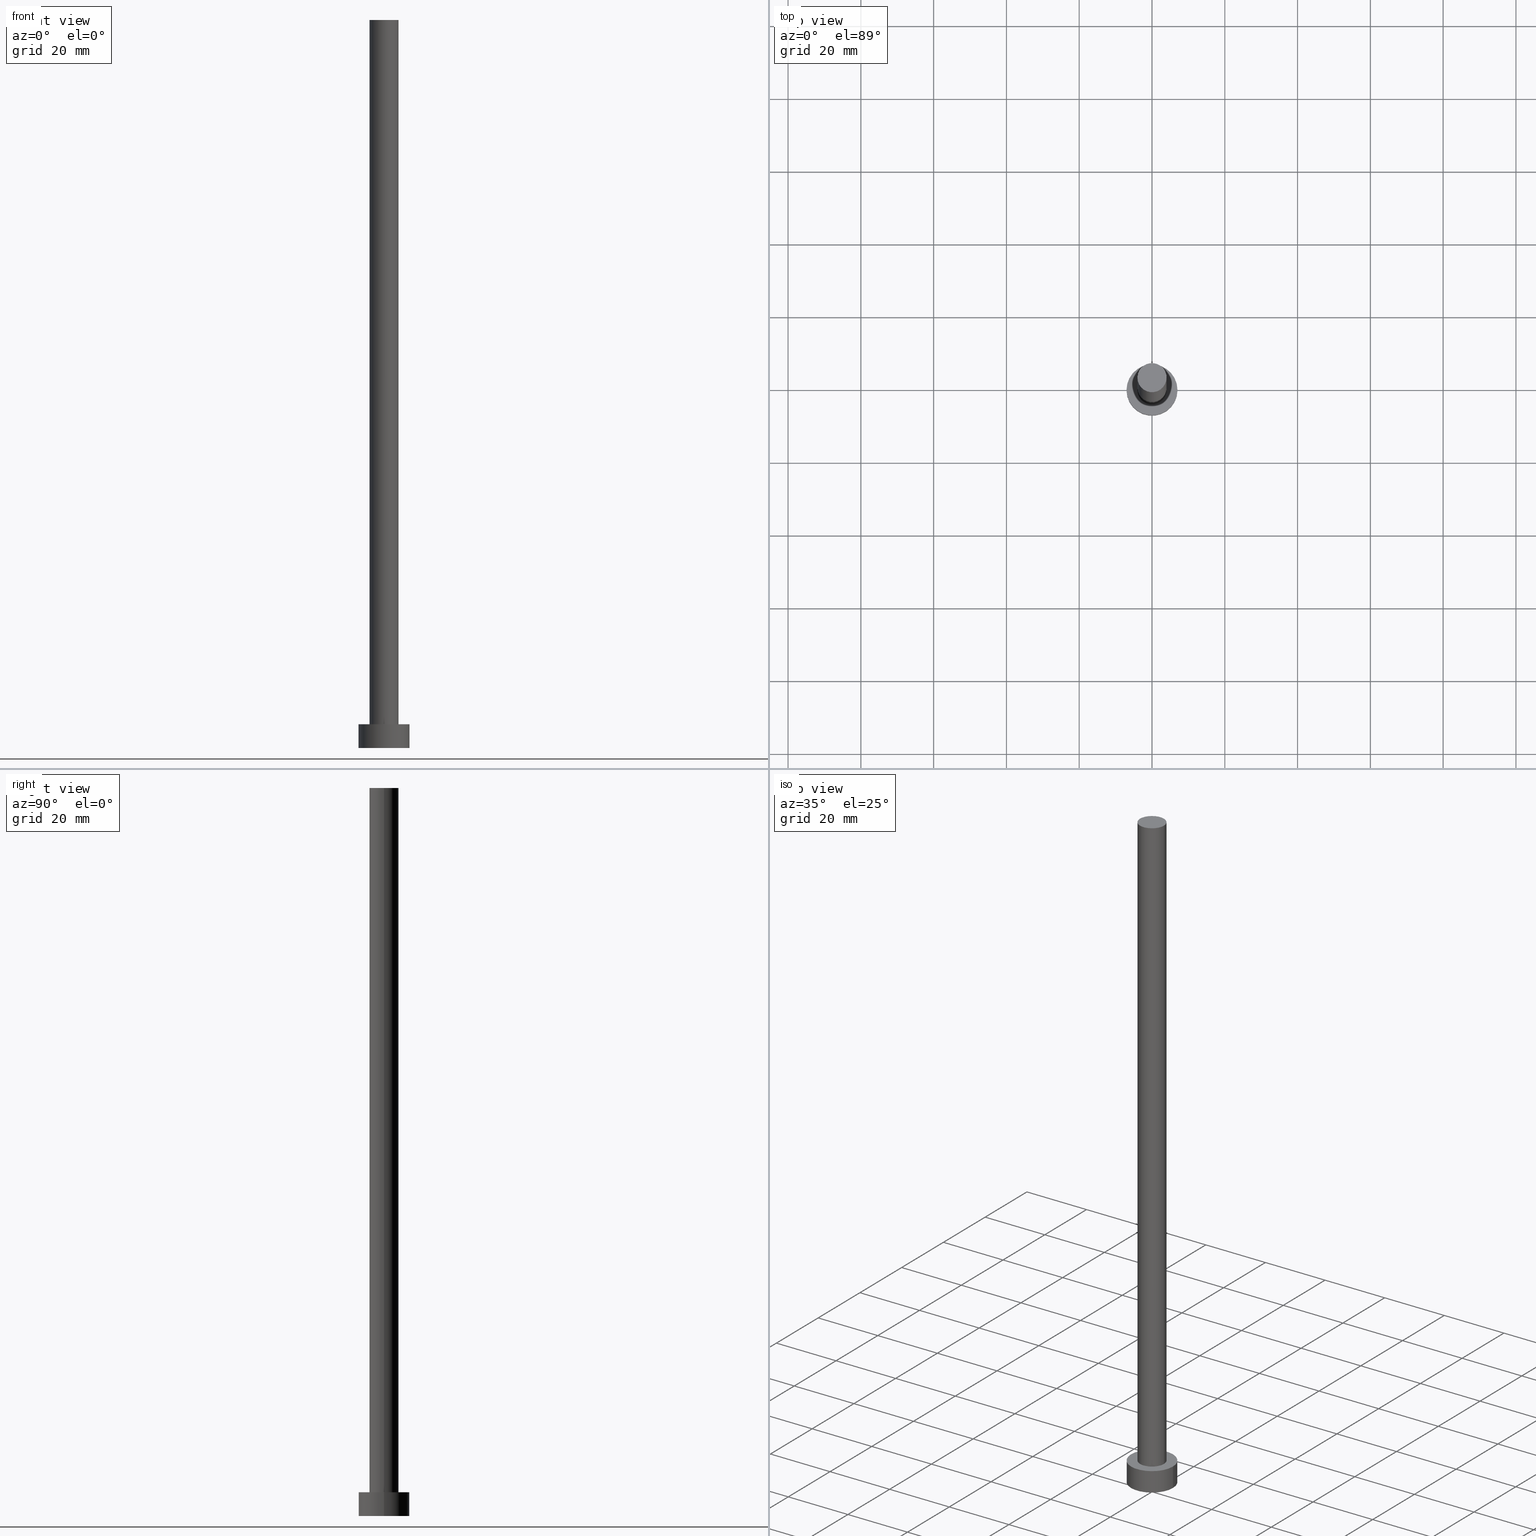
[diagram: canonical four-view strip — front | top / right | iso, engineering-drawing reading convention]
A machine part, canonical four-view strip (front | top / right | iso — engineering-drawing reading convention). The complete STEP part file that produces these views, byte-faithful:
ISO-10303-21;
HEADER;
FILE_DESCRIPTION (( 'STEP AP203' ),
    '1' );
FILE_NAME ('f5f1.STEP',
    '2023-02-13T14:19:38',
    ( '' ),
    ( '' ),
    'SwSTEP 2.0',
    'SolidWorks 2019',
    '' );
FILE_SCHEMA (( 'CONFIG_CONTROL_DESIGN' ));
ENDSEC;

DATA;
#1 = MANIFOLD_SOLID_BREP ( 'P�idat vysunut�m3', #27 ) ;
#2 = COORDINATED_UNIVERSAL_TIME_OFFSET ( 1, 0, .AHEAD. ) ;
#3 = CARTESIAN_POINT ( 'NONE',  ( 7.000000000000000000, 8.572527594031471218E-16, 6.500000000000000000 ) ) ;
#4 = COORDINATED_UNIVERSAL_TIME_OFFSET ( 1, 0, .AHEAD. ) ;
#5 = CIRCLE ( 'NONE', #173, 4.000000000000000000 ) ;
#6 = LOCAL_TIME ( 15, 19, 38.00000000000000000, #4 ) ;
#7 = ADVANCED_FACE ( 'NONE', ( #113, #234 ), #153, .T. ) ;
#8 = CARTESIAN_POINT ( 'NONE',  ( 0.000000000000000000, 0.000000000000000000, 6.500000000000000000 ) ) ;
#9 = CARTESIAN_POINT ( 'NONE',  ( 0.000000000000000000, 0.000000000000000000, 200.0000000000000000 ) ) ;
#10 = DIRECTION ( 'NONE',  ( 0.000000000000000000, 0.000000000000000000, 1.000000000000000000 ) ) ;
#11 = DIRECTION ( 'NONE',  ( 0.000000000000000000, 0.000000000000000000, 1.000000000000000000 ) ) ;
#12 = DIRECTION ( 'NONE',  ( -1.000000000000000000, 0.000000000000000000, 0.000000000000000000 ) ) ;
#13 = CIRCLE ( 'NONE', #19, 7.000000000000000000 ) ;
#14 = LOCAL_TIME ( 15, 19, 38.00000000000000000, #196 ) ;
#15 = AXIS2_PLACEMENT_3D ( 'NONE', #9, #236, #223 ) ;
#16 = PERSON_AND_ORGANIZATION ( #136, #28 ) ;
#17 = PERSON_AND_ORGANIZATION ( #136, #28 ) ;
#18 = PLANE ( 'NONE',  #57 ) ;
#19 = AXIS2_PLACEMENT_3D ( 'NONE', #88, #164, #59 ) ;
#20 = APPLICATION_PROTOCOL_DEFINITION ( 'international standard', 'config_control_design', 1994, #227 ) ;
#21 = EDGE_CURVE ( 'NONE', #229, #186, #77, .T. ) ;
#22 = CARTESIAN_POINT ( 'NONE',  ( 0.000000000000000000, 0.000000000000000000, 6.500000000000000000 ) ) ;
#23 = CALENDAR_DATE ( 2023, 13, 2 ) ;
#24 = DIRECTION ( 'NONE',  ( 0.000000000000000000, 0.000000000000000000, 1.000000000000000000 ) ) ;
#25 = ORIENTED_EDGE ( 'NONE', *, *, #214, .T. ) ;
#26 = EDGE_CURVE ( 'NONE', #112, #186, #206, .T. ) ;
#27 = CLOSED_SHELL ( 'NONE', ( #238, #224, #75, #7, #128, #151, #222 ) ) ;
#28 = ORGANIZATION ( 'NEUR�EN�', 'NEUR�EN�', '' ) ;
#29 = ORIENTED_EDGE ( 'NONE', *, *, #26, .F. ) ;
#30 = EDGE_CURVE ( 'NONE', #112, #250, #5, .T. ) ;
#31 = ORIENTED_EDGE ( 'NONE', *, *, #30, .T. ) ;
#32 = AXIS2_PLACEMENT_3D ( 'NONE', #8, #225, #12 ) ;
#33 = AXIS2_PLACEMENT_3D ( 'NONE', #221, #84, #240 ) ;
#34 = CC_DESIGN_PERSON_AND_ORGANIZATION_ASSIGNMENT ( #16, #201, ( #169 ) ) ;
#35 = CIRCLE ( 'NONE', #33, 4.000000000000000000 ) ;
#36 = ORIENTED_EDGE ( 'NONE', *, *, #233, .F. ) ;
#37 = DATE_TIME_ROLE ( 'creation_date' ) ;
#38 = CARTESIAN_POINT ( 'NONE',  ( 0.000000000000000000, 0.000000000000000000, 200.0000000000000000 ) ) ;
#39 = DIRECTION ( 'NONE',  ( -1.000000000000000000, 0.000000000000000000, 0.000000000000000000 ) ) ;
#40 = ORIENTED_EDGE ( 'NONE', *, *, #21, .T. ) ;
#41 = DIRECTION ( 'NONE',  ( 1.000000000000000000, 0.000000000000000000, 0.000000000000000000 ) ) ;
#42 = CARTESIAN_POINT ( 'NONE',  ( 0.000000000000000000, 0.000000000000000000, 0.000000000000000000 ) ) ;
#43 = APPROVAL ( #195, 'NEUR�EN�' ) ;
#44 = LINE ( 'NONE', #179, #246 ) ;
#45 = PERSON_AND_ORGANIZATION ( #136, #28 ) ;
#46 = CARTESIAN_POINT ( 'NONE',  ( 7.000000000000000000, 8.572527594031471218E-16, 0.000000000000000000 ) ) ;
#47 = COORDINATED_UNIVERSAL_TIME_OFFSET ( 1, 0, .AHEAD. ) ;
#48 = FACE_OUTER_BOUND ( 'NONE', #83, .T. ) ;
#49 = EDGE_LOOP ( 'NONE', ( #108, #155, #203, #249 ) ) ;
#50 = CARTESIAN_POINT ( 'NONE',  ( 0.000000000000000000, 0.000000000000000000, 6.500000000000000000 ) ) ;
#51 = CC_DESIGN_PERSON_AND_ORGANIZATION_ASSIGNMENT ( #232, #134, ( #64 ) ) ;
#52 = VERTEX_POINT ( 'NONE', #242 ) ;
#53 = ORIENTED_EDGE ( 'NONE', *, *, #30, .F. ) ;
#54 = APPROVAL_DATE_TIME ( #157, #202 ) ;
#55 = ORIENTED_EDGE ( 'NONE', *, *, #185, .F. ) ;
#56 = EDGE_CURVE ( 'NONE', #147, #148, #66, .T. ) ;
#57 = AXIS2_PLACEMENT_3D ( 'NONE', #180, #162, #184 ) ;
#58 = CARTESIAN_POINT ( 'NONE',  ( 0.000000000000000000, 0.000000000000000000, 200.0000000000000000 ) ) ;
#59 = DIRECTION ( 'NONE',  ( 1.000000000000000000, 0.000000000000000000, 0.000000000000000000 ) ) ;
#60 = DATE_AND_TIME ( #23, #178 ) ;
#61 = FACE_OUTER_BOUND ( 'NONE', #167, .T. ) ;
#62 = CARTESIAN_POINT ( 'NONE',  ( -4.000000000000000000, 0.000000000000000000, 6.500000000000000000 ) ) ;
#63 = CARTESIAN_POINT ( 'NONE',  ( 7.000000000000000000, 8.572527594031471218E-16, 6.500000000000000000 ) ) ;
#64 = SECURITY_CLASSIFICATION ( '', '', #193 ) ;
#65 = CC_DESIGN_DATE_AND_TIME_ASSIGNMENT ( #152, #154, ( #64 ) ) ;
#66 = LINE ( 'NONE', #3, #209 ) ;
#67 =( LENGTH_UNIT ( ) NAMED_UNIT ( * ) SI_UNIT ( .MILLI., .METRE. ) );
#68 = APPLICATION_CONTEXT ( 'configuration controlled 3d designs of mechanical parts and assemblies' ) ;
#69 = DIRECTION ( 'NONE',  ( 0.000000000000000000, 0.000000000000000000, 1.000000000000000000 ) ) ;
#70 = PRODUCT_DEFINITION_FORMATION_WITH_SPECIFIED_SOURCE ( 'LIBOVOLN�', '', #169, .NOT_KNOWN. ) ;
#71 = DESIGN_CONTEXT ( 'detailed design', #227, 'design' ) ;
#72 = CC_DESIGN_APPROVAL ( #43, ( #64 ) ) ;
#73 = AXIS2_PLACEMENT_3D ( 'NONE', #248, #191, #94 ) ;
#74 = ORIENTED_EDGE ( 'NONE', *, *, #165, .T. ) ;
#75 = ADVANCED_FACE ( 'NONE', ( #106 ), #161, .T. ) ;
#76 = CARTESIAN_POINT ( 'NONE',  ( -4.000000000000000000, 0.000000000000000000, 200.0000000000000000 ) ) ;
#77 = CIRCLE ( 'NONE', #150, 4.000000000000000000 ) ;
#78 = AXIS2_PLACEMENT_3D ( 'NONE', #58, #220, #39 ) ;
#79 = DIRECTION ( 'NONE',  ( -0.000000000000000000, -0.000000000000000000, -1.000000000000000000 ) ) ;
#80 = APPROVAL_ROLE ( '' ) ;
#81 = DIRECTION ( 'NONE',  ( -0.000000000000000000, -0.000000000000000000, -1.000000000000000000 ) ) ;
#82 = DIRECTION ( 'NONE',  ( -1.000000000000000000, 0.000000000000000000, 0.000000000000000000 ) ) ;
#83 = EDGE_LOOP ( 'NONE', ( #210, #31 ) ) ;
#84 = DIRECTION ( 'NONE',  ( 0.000000000000000000, 0.000000000000000000, 1.000000000000000000 ) ) ;
#85 = PLANE ( 'NONE',  #87 ) ;
#86 = DIRECTION ( 'NONE',  ( 1.000000000000000000, 0.000000000000000000, 0.000000000000000000 ) ) ;
#87 = AXIS2_PLACEMENT_3D ( 'NONE', #126, #99, #177 ) ;
#88 = CARTESIAN_POINT ( 'NONE',  ( 0.000000000000000000, 0.000000000000000000, 0.000000000000000000 ) ) ;
#89 = CC_DESIGN_PERSON_AND_ORGANIZATION_ASSIGNMENT ( #133, #115, ( #70 ) ) ;
#90 = EDGE_LOOP ( 'NONE', ( #53, #135, #145, #212 ) ) ;
#91 = AXIS2_PLACEMENT_3D ( 'NONE', #22, #24, #139 ) ;
#92 = EDGE_LOOP ( 'NONE', ( #189, #168 ) ) ;
#93 = APPROVAL_PERSON_ORGANIZATION ( #194, #43, #117 ) ;
#94 = DIRECTION ( 'NONE',  ( 1.000000000000000000, 0.000000000000000000, -0.000000000000000000 ) ) ;
#95 = PRODUCT_DEFINITION_SHAPE ( 'NONE', 'NONE',  #216 ) ;
#96 = CC_DESIGN_DATE_AND_TIME_ASSIGNMENT ( #125, #37, ( #216 ) ) ;
#97 = CALENDAR_DATE ( 2023, 13, 2 ) ;
#98 = CALENDAR_DATE ( 2023, 13, 2 ) ;
#99 = DIRECTION ( 'NONE',  ( 0.000000000000000000, 0.000000000000000000, 1.000000000000000000 ) ) ;
#100 = CALENDAR_DATE ( 2023, 13, 2 ) ;
#101 = CIRCLE ( 'NONE', #91, 7.000000000000000000 ) ;
#102 = DIRECTION ( 'NONE',  ( -0.000000000000000000, -0.000000000000000000, -1.000000000000000000 ) ) ;
#103 = CARTESIAN_POINT ( 'NONE',  ( 4.000000000000000000, 4.898587196589412829E-16, 200.0000000000000000 ) ) ;
#104 =( NAMED_UNIT ( * ) PLANE_ANGLE_UNIT ( ) SI_UNIT ( $, .RADIAN. ) );
#105 = ADVANCED_BREP_SHAPE_REPRESENTATION ( 'f5f1', ( #1, #190 ), #140 ) ;
#106 = FACE_OUTER_BOUND ( 'NONE', #131, .T. ) ;
#107 = EDGE_CURVE ( 'NONE', #250, #229, #156, .T. ) ;
#108 = ORIENTED_EDGE ( 'NONE', *, *, #187, .F. ) ;
#109 = AXIS2_PLACEMENT_3D ( 'NONE', #244, #69, #158 ) ;
#110 = CC_DESIGN_PERSON_AND_ORGANIZATION_ASSIGNMENT ( #17, #215, ( #70 ) ) ;
#111 = UNCERTAINTY_MEASURE_WITH_UNIT (LENGTH_MEASURE( 1.000000000000000082E-05 ), #67, 'distance_accuracy_value', 'NONE');
#112 = VERTEX_POINT ( 'NONE', #241 ) ;
#113 = FACE_BOUND ( 'NONE', #92, .T. ) ;
#114 = AXIS2_PLACEMENT_3D ( 'NONE', #137, #204, #144 ) ;
#115 = PERSON_AND_ORGANIZATION_ROLE ( 'design_supplier' ) ;
#116 = ORIENTED_EDGE ( 'NONE', *, *, #214, .F. ) ;
#117 = APPROVAL_ROLE ( '' ) ;
#118 = PERSON_AND_ORGANIZATION ( #136, #28 ) ;
#119 = CARTESIAN_POINT ( 'NONE',  ( -7.000000000000000000, 0.000000000000000000, 6.500000000000000000 ) ) ;
#120 = CC_DESIGN_SECURITY_CLASSIFICATION ( #64, ( #70 ) ) ;
#121 = APPLICATION_PROTOCOL_DEFINITION ( 'international standard', 'config_control_design', 1994, #68 ) ;
#122 = CARTESIAN_POINT ( 'NONE',  ( 4.000000000000000000, 4.898587196589412829E-16, 6.500000000000000000 ) ) ;
#123 = APPROVAL_STATUS ( 'not_yet_approved' ) ;
#124 = DIRECTION ( 'NONE',  ( -0.000000000000000000, -0.000000000000000000, -1.000000000000000000 ) ) ;
#125 = DATE_AND_TIME ( #97, #228 ) ;
#126 = CARTESIAN_POINT ( 'NONE',  ( 0.000000000000000000, 0.000000000000000000, 200.0000000000000000 ) ) ;
#127 = APPROVAL_PERSON_ORGANIZATION ( #118, #202, #80 ) ;
#128 = ADVANCED_FACE ( 'NONE', ( #142 ), #18, .F. ) ;
#129 = ORIENTED_EDGE ( 'NONE', *, *, #172, .T. ) ;
#130 = VECTOR ( 'NONE', #124, 1000.000000000000000 ) ;
#131 = EDGE_LOOP ( 'NONE', ( #208, #132, #129, #25 ) ) ;
#132 = ORIENTED_EDGE ( 'NONE', *, *, #165, .F. ) ;
#133 = PERSON_AND_ORGANIZATION ( #136, #28 ) ;
#134 = PERSON_AND_ORGANIZATION_ROLE ( 'classification_officer' ) ;
#135 = ORIENTED_EDGE ( 'NONE', *, *, #26, .T. ) ;
#136 = PERSON ( 'NEUR�EN�', 'NEUR�EN�', 'NEUR�EN�', ('NEUR�EN�'), ('NEUR�EN�'), ('NEUR�EN�') ) ;
#137 = CARTESIAN_POINT ( 'NONE',  ( 0.000000000000000000, 0.000000000000000000, 0.000000000000000000 ) ) ;
#138 = DIRECTION ( 'NONE',  ( 1.000000000000000000, 0.000000000000000000, 0.000000000000000000 ) ) ;
#139 = DIRECTION ( 'NONE',  ( 1.000000000000000000, 0.000000000000000000, 0.000000000000000000 ) ) ;
#140 =( GEOMETRIC_REPRESENTATION_CONTEXT ( 3 ) GLOBAL_UNCERTAINTY_ASSIGNED_CONTEXT ( ( #111 ) ) GLOBAL_UNIT_ASSIGNED_CONTEXT ( ( #67, #104, #181 ) ) REPRESENTATION_CONTEXT ( 'NONE', 'WORKASPACE' ) );
#141 = CYLINDRICAL_SURFACE ( 'NONE', #15, 4.000000000000000000 ) ;
#142 = FACE_OUTER_BOUND ( 'NONE', #188, .T. ) ;
#143 = PERSON_AND_ORGANIZATION_ROLE ( 'creator' ) ;
#144 = DIRECTION ( 'NONE',  ( 1.000000000000000000, 0.000000000000000000, 0.000000000000000000 ) ) ;
#145 = ORIENTED_EDGE ( 'NONE', *, *, #231, .T. ) ;
#146 = ORIENTED_EDGE ( 'NONE', *, *, #107, .T. ) ;
#147 = VERTEX_POINT ( 'NONE', #63 ) ;
#148 = VERTEX_POINT ( 'NONE', #46 ) ;
#149 = CIRCLE ( 'NONE', #114, 7.000000000000000000 ) ;
#150 = AXIS2_PLACEMENT_3D ( 'NONE', #175, #253, #41 ) ;
#151 = ADVANCED_FACE ( 'NONE', ( #61 ), #141, .T. ) ;
#152 = DATE_AND_TIME ( #251, #200 ) ;
#153 = PLANE ( 'NONE',  #73 ) ;
#154 = DATE_TIME_ROLE ( 'classification_date' ) ;
#155 = ORIENTED_EDGE ( 'NONE', *, *, #56, .T. ) ;
#156 = LINE ( 'NONE', #198, #130 ) ;
#157 = DATE_AND_TIME ( #100, #6 ) ;
#158 = DIRECTION ( 'NONE',  ( 1.000000000000000000, 0.000000000000000000, 0.000000000000000000 ) ) ;
#159 = DIRECTION ( 'NONE',  ( 0.000000000000000000, 0.000000000000000000, 1.000000000000000000 ) ) ;
#160 = EDGE_LOOP ( 'NONE', ( #74, #230 ) ) ;
#161 = CYLINDRICAL_SURFACE ( 'NONE', #32, 7.000000000000000000 ) ;
#162 = DIRECTION ( 'NONE',  ( 0.000000000000000000, 0.000000000000000000, 1.000000000000000000 ) ) ;
#163 = APPROVAL_DATE_TIME ( #60, #192 ) ;
#164 = DIRECTION ( 'NONE',  ( 0.000000000000000000, 0.000000000000000000, 1.000000000000000000 ) ) ;
#165 = EDGE_CURVE ( 'NONE', #171, #147, #101, .T. ) ;
#166 = CIRCLE ( 'NONE', #109, 7.000000000000000000 ) ;
#167 = EDGE_LOOP ( 'NONE', ( #29, #36, #146, #40 ) ) ;
#168 = ORIENTED_EDGE ( 'NONE', *, *, #231, .F. ) ;
#169 = PRODUCT ( 'f5f1', 'f5f1', '', ( #183 ) ) ;
#170 = CC_DESIGN_APPROVAL ( #192, ( #216 ) ) ;
#171 = VERTEX_POINT ( 'NONE', #119 ) ;
#172 = EDGE_CURVE ( 'NONE', #171, #52, #44, .T. ) ;
#173 = AXIS2_PLACEMENT_3D ( 'NONE', #38, #10, #239 ) ;
#174 = AXIS2_PLACEMENT_3D ( 'NONE', #50, #211, #82 ) ;
#175 = CARTESIAN_POINT ( 'NONE',  ( 0.000000000000000000, 0.000000000000000000, 6.500000000000000000 ) ) ;
#176 = FACE_OUTER_BOUND ( 'NONE', #90, .T. ) ;
#177 = DIRECTION ( 'NONE',  ( 1.000000000000000000, 0.000000000000000000, -0.000000000000000000 ) ) ;
#178 = LOCAL_TIME ( 15, 19, 38.00000000000000000, #237 ) ;
#179 = CARTESIAN_POINT ( 'NONE',  ( -7.000000000000000000, 0.000000000000000000, 6.500000000000000000 ) ) ;
#180 = CARTESIAN_POINT ( 'NONE',  ( 0.000000000000000000, 0.000000000000000000, 0.000000000000000000 ) ) ;
#181 =( NAMED_UNIT ( * ) SI_UNIT ( $, .STERADIAN. ) SOLID_ANGLE_UNIT ( ) );
#182 = PRODUCT_RELATED_PRODUCT_CATEGORY ( 'detail', '', ( #169 ) ) ;
#183 = MECHANICAL_CONTEXT ( 'NONE', #68, 'mechanical' ) ;
#184 = DIRECTION ( 'NONE',  ( 1.000000000000000000, 0.000000000000000000, -0.000000000000000000 ) ) ;
#185 = EDGE_CURVE ( 'NONE', #148, #52, #13, .T. ) ;
#186 = VERTEX_POINT ( 'NONE', #122 ) ;
#187 = EDGE_CURVE ( 'NONE', #147, #171, #166, .T. ) ;
#188 = EDGE_LOOP ( 'NONE', ( #116, #55 ) ) ;
#189 = ORIENTED_EDGE ( 'NONE', *, *, #21, .F. ) ;
#190 = AXIS2_PLACEMENT_3D ( 'NONE', #42, #11, #86 ) ;
#191 = DIRECTION ( 'NONE',  ( 0.000000000000000000, 0.000000000000000000, 1.000000000000000000 ) ) ;
#192 = APPROVAL ( #123, 'NEUR�EN�' ) ;
#193 = SECURITY_CLASSIFICATION_LEVEL ( 'unclassified' ) ;
#194 = PERSON_AND_ORGANIZATION ( #136, #28 ) ;
#195 = APPROVAL_STATUS ( 'not_yet_approved' ) ;
#196 = COORDINATED_UNIVERSAL_TIME_OFFSET ( 1, 0, .AHEAD. ) ;
#197 = APPROVAL_STATUS ( 'not_yet_approved' ) ;
#198 = CARTESIAN_POINT ( 'NONE',  ( -4.000000000000000000, 0.000000000000000000, 200.0000000000000000 ) ) ;
#199 = CYLINDRICAL_SURFACE ( 'NONE', #78, 4.000000000000000000 ) ;
#200 = LOCAL_TIME ( 15, 19, 38.00000000000000000, #2 ) ;
#201 = PERSON_AND_ORGANIZATION_ROLE ( 'design_owner' ) ;
#202 = APPROVAL ( #197, 'NEUR�EN�' ) ;
#203 = ORIENTED_EDGE ( 'NONE', *, *, #185, .T. ) ;
#204 = DIRECTION ( 'NONE',  ( 0.000000000000000000, 0.000000000000000000, 1.000000000000000000 ) ) ;
#205 = APPROVAL_ROLE ( '' ) ;
#206 = LINE ( 'NONE', #103, #217 ) ;
#207 = APPROVAL_PERSON_ORGANIZATION ( #45, #192, #205 ) ;
#208 = ORIENTED_EDGE ( 'NONE', *, *, #56, .F. ) ;
#209 = VECTOR ( 'NONE', #79, 1000.000000000000000 ) ;
#210 = ORIENTED_EDGE ( 'NONE', *, *, #233, .T. ) ;
#211 = DIRECTION ( 'NONE',  ( -0.000000000000000000, -0.000000000000000000, -1.000000000000000000 ) ) ;
#212 = ORIENTED_EDGE ( 'NONE', *, *, #107, .F. ) ;
#213 = AXIS2_PLACEMENT_3D ( 'NONE', #255, #159, #138 ) ;
#214 = EDGE_CURVE ( 'NONE', #52, #148, #149, .T. ) ;
#215 = PERSON_AND_ORGANIZATION_ROLE ( 'creator' ) ;
#216 = PRODUCT_DEFINITION ( 'NEZN�M�', '', #70, #71 ) ;
#217 = VECTOR ( 'NONE', #102, 1000.000000000000000 ) ;
#218 = APPROVAL_DATE_TIME ( #254, #43 ) ;
#219 = FACE_OUTER_BOUND ( 'NONE', #49, .T. ) ;
#220 = DIRECTION ( 'NONE',  ( -0.000000000000000000, -0.000000000000000000, -1.000000000000000000 ) ) ;
#221 = CARTESIAN_POINT ( 'NONE',  ( 0.000000000000000000, 0.000000000000000000, 200.0000000000000000 ) ) ;
#222 = ADVANCED_FACE ( 'NONE', ( #48 ), #85, .T. ) ;
#223 = DIRECTION ( 'NONE',  ( -1.000000000000000000, 0.000000000000000000, 0.000000000000000000 ) ) ;
#224 = ADVANCED_FACE ( 'NONE', ( #219 ), #226, .T. ) ;
#225 = DIRECTION ( 'NONE',  ( -0.000000000000000000, -0.000000000000000000, -1.000000000000000000 ) ) ;
#226 = CYLINDRICAL_SURFACE ( 'NONE', #174, 7.000000000000000000 ) ;
#227 = APPLICATION_CONTEXT ( 'configuration controlled 3d designs of mechanical parts and assemblies' ) ;
#228 = LOCAL_TIME ( 15, 19, 38.00000000000000000, #47 ) ;
#229 = VERTEX_POINT ( 'NONE', #62 ) ;
#230 = ORIENTED_EDGE ( 'NONE', *, *, #187, .T. ) ;
#231 = EDGE_CURVE ( 'NONE', #186, #229, #252, .T. ) ;
#232 = PERSON_AND_ORGANIZATION ( #136, #28 ) ;
#233 = EDGE_CURVE ( 'NONE', #250, #112, #35, .T. ) ;
#234 = FACE_OUTER_BOUND ( 'NONE', #160, .T. ) ;
#235 = SHAPE_DEFINITION_REPRESENTATION ( #95, #105 ) ;
#236 = DIRECTION ( 'NONE',  ( -0.000000000000000000, -0.000000000000000000, -1.000000000000000000 ) ) ;
#237 = COORDINATED_UNIVERSAL_TIME_OFFSET ( 1, 0, .AHEAD. ) ;
#238 = ADVANCED_FACE ( 'NONE', ( #176 ), #199, .T. ) ;
#239 = DIRECTION ( 'NONE',  ( 1.000000000000000000, 0.000000000000000000, 0.000000000000000000 ) ) ;
#240 = DIRECTION ( 'NONE',  ( 1.000000000000000000, 0.000000000000000000, 0.000000000000000000 ) ) ;
#241 = CARTESIAN_POINT ( 'NONE',  ( 4.000000000000000000, 4.898587196589412829E-16, 200.0000000000000000 ) ) ;
#242 = CARTESIAN_POINT ( 'NONE',  ( -7.000000000000000000, 0.000000000000000000, 0.000000000000000000 ) ) ;
#243 = PERSON_AND_ORGANIZATION ( #136, #28 ) ;
#244 = CARTESIAN_POINT ( 'NONE',  ( 0.000000000000000000, 0.000000000000000000, 6.500000000000000000 ) ) ;
#245 = CC_DESIGN_APPROVAL ( #202, ( #70 ) ) ;
#246 = VECTOR ( 'NONE', #81, 1000.000000000000000 ) ;
#247 = CC_DESIGN_PERSON_AND_ORGANIZATION_ASSIGNMENT ( #243, #143, ( #216 ) ) ;
#248 = CARTESIAN_POINT ( 'NONE',  ( 0.000000000000000000, 0.000000000000000000, 6.500000000000000000 ) ) ;
#249 = ORIENTED_EDGE ( 'NONE', *, *, #172, .F. ) ;
#250 = VERTEX_POINT ( 'NONE', #76 ) ;
#251 = CALENDAR_DATE ( 2023, 13, 2 ) ;
#252 = CIRCLE ( 'NONE', #213, 4.000000000000000000 ) ;
#253 = DIRECTION ( 'NONE',  ( 0.000000000000000000, 0.000000000000000000, 1.000000000000000000 ) ) ;
#254 = DATE_AND_TIME ( #98, #14 ) ;
#255 = CARTESIAN_POINT ( 'NONE',  ( 0.000000000000000000, 0.000000000000000000, 6.500000000000000000 ) ) ;
ENDSEC;
END-ISO-10303-21;
